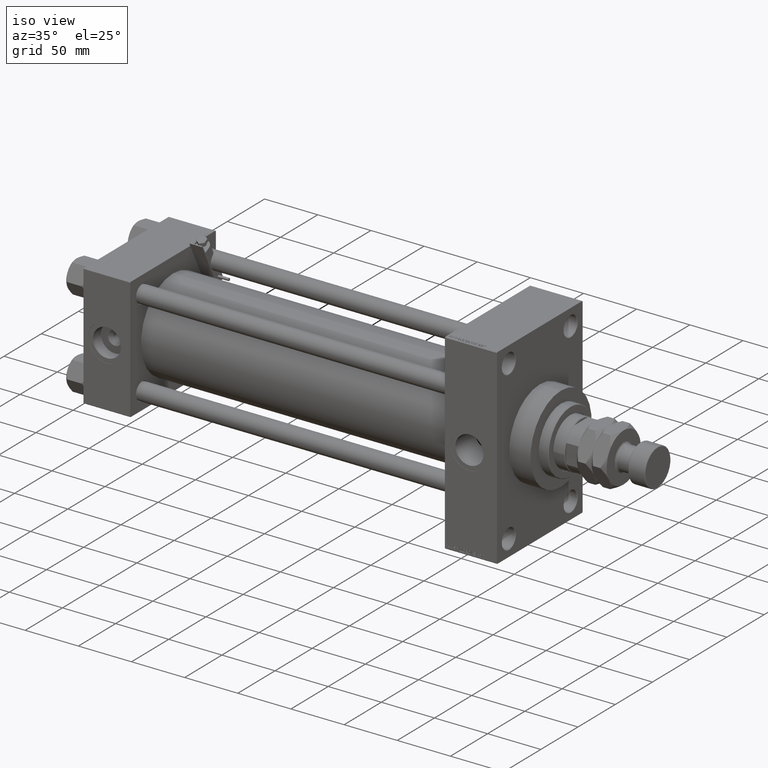
[diagram: clean part render]
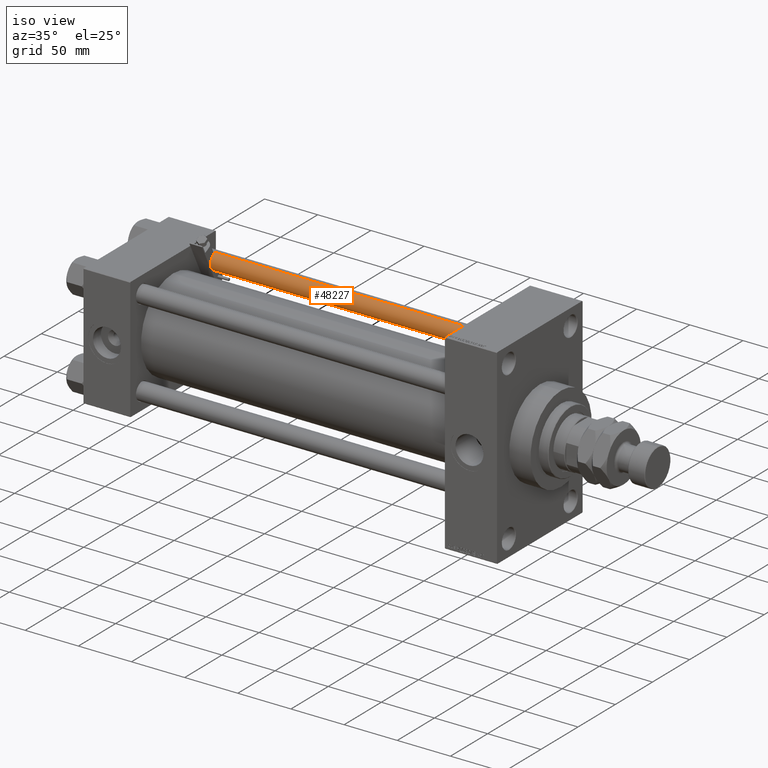
[diagram: same view with one face highlighted and labeled with its STEP entity id]
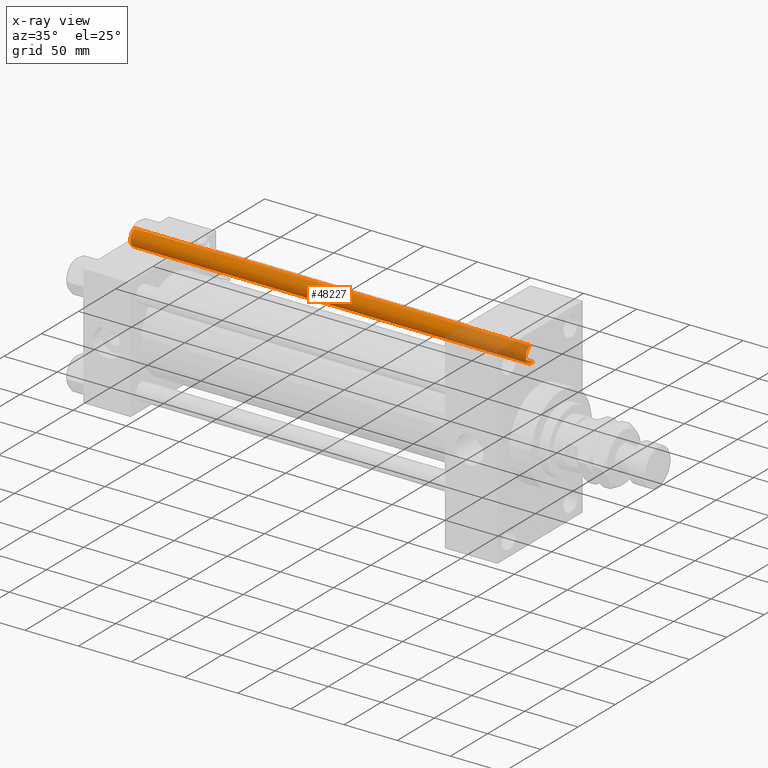
[diagram: x-ray of the same camera — body ghosted, the highlighted face saturated]
A machine part, iso view. The second image highlights one B-rep face of the part: STEP entity #48227.
The next image is the same camera in x-ray: the body ghosted, the highlighted face saturated — about 19% of this face is hidden behind the body in this view.
In plain terms, the highlighted cylindrical surface (edge-blend (fillet) strip) has radius 8 mm, axis along (-1, -0, 0).
Its self-contained STEP definition (entity closure, byte-faithful):
#1391 = CIRCLE ( 'NONE', #24348, 8.000000000000000000 ) ;
#2874 = DIRECTION ( 'NONE',  ( -0.000000000000000000, -0.000000000000000000, -1.000000000000000000 ) ) ;
#5740 = EDGE_LOOP ( 'NONE', ( #11125, #20399, #36639, #49043 ) ) ;
#6542 = DIRECTION ( 'NONE',  ( 1.000000000000000000, 0.000000000000000000, 0.000000000000000000 ) ) ;
#7633 = VERTEX_POINT ( 'NONE', #41487 ) ;
#7653 = CARTESIAN_POINT ( 'NONE',  ( 8.000000000000000000, 9.797174393178825657E-16, 372.5000000000000000 ) ) ;
#8117 = VECTOR ( 'NONE', #32211, 1000.000000000000000 ) ;
#8728 = VERTEX_POINT ( 'NONE', #7653 ) ;
#10285 = VERTEX_POINT ( 'NONE', #26711 ) ;
#10829 = EDGE_CURVE ( 'NONE', #8728, #16433, #1391, .T. ) ;
#11125 = ORIENTED_EDGE ( 'NONE', *, *, #12331, .F. ) ;
#11647 = CIRCLE ( 'NONE', #51567, 8.000000000000000000 ) ;
#12331 = EDGE_CURVE ( 'NONE', #8728, #10285, #23726, .T. ) ;
#16433 = VERTEX_POINT ( 'NONE', #40894 ) ;
#19456 = CARTESIAN_POINT ( 'NONE',  ( -8.000000000000000000, 0.000000000000000000, 373.0000000000000000 ) ) ;
#20399 = ORIENTED_EDGE ( 'NONE', *, *, #10829, .T. ) ;
#22193 = DIRECTION ( 'NONE',  ( -0.000000000000000000, -0.000000000000000000, 1.000000000000000000 ) ) ;
#22444 = CARTESIAN_POINT ( 'NONE',  ( 0.000000000000000000, 0.000000000000000000, 0.5000000000000559552 ) ) ;
#22606 = FACE_OUTER_BOUND ( 'NONE', #5740, .T. ) ;
#23726 = LINE ( 'NONE', #35946, #38839 ) ;
#24231 = LINE ( 'NONE', #19456, #8117 ) ;
#24348 = AXIS2_PLACEMENT_3D ( 'NONE', #39525, #39795, #6542 ) ;
#26583 = CYLINDRICAL_SURFACE ( 'NONE', #43257, 8.000000000000000000 ) ;
#26711 = CARTESIAN_POINT ( 'NONE',  ( 8.000000000000000000, 9.797174393178825657E-16, 0.5000000000000559552 ) ) ;
#30157 = DIRECTION ( 'NONE',  ( 1.000000000000000000, 0.000000000000000000, 0.000000000000000000 ) ) ;
#32211 = DIRECTION ( 'NONE',  ( -0.000000000000000000, -0.000000000000000000, -1.000000000000000000 ) ) ;
#35946 = CARTESIAN_POINT ( 'NONE',  ( 8.000000000000000000, 9.797174393178825657E-16, 373.0000000000000000 ) ) ;
#36364 = EDGE_CURVE ( 'NONE', #16433, #7633, #24231, .T. ) ;
#36639 = ORIENTED_EDGE ( 'NONE', *, *, #36364, .T. ) ;
#38304 = DIRECTION ( 'NONE',  ( -1.000000000000000000, 0.000000000000000000, 0.000000000000000000 ) ) ;
#38839 = VECTOR ( 'NONE', #39410, 1000.000000000000000 ) ;
#39410 = DIRECTION ( 'NONE',  ( -0.000000000000000000, -0.000000000000000000, -1.000000000000000000 ) ) ;
#39525 = CARTESIAN_POINT ( 'NONE',  ( 0.000000000000000000, 0.000000000000000000, 372.5000000000000000 ) ) ;
#39795 = DIRECTION ( 'NONE',  ( 0.000000000000000000, 0.000000000000000000, -1.000000000000000000 ) ) ;
#40894 = CARTESIAN_POINT ( 'NONE',  ( -8.000000000000000000, 0.000000000000000000, 372.5000000000000000 ) ) ;
#41487 = CARTESIAN_POINT ( 'NONE',  ( -8.000000000000000000, 0.000000000000000000, 0.5000000000000559552 ) ) ;
#42290 = CARTESIAN_POINT ( 'NONE',  ( 0.000000000000000000, 0.000000000000000000, 373.0000000000000000 ) ) ;
#43206 = EDGE_CURVE ( 'NONE', #7633, #10285, #11647, .T. ) ;
#43257 = AXIS2_PLACEMENT_3D ( 'NONE', #42290, #2874, #38304 ) ;
#48227 = ADVANCED_FACE ( 'NONE', ( #22606 ), #26583, .T. ) ;
#49043 = ORIENTED_EDGE ( 'NONE', *, *, #43206, .T. ) ;
#51567 = AXIS2_PLACEMENT_3D ( 'NONE', #22444, #22193, #30157 ) ;